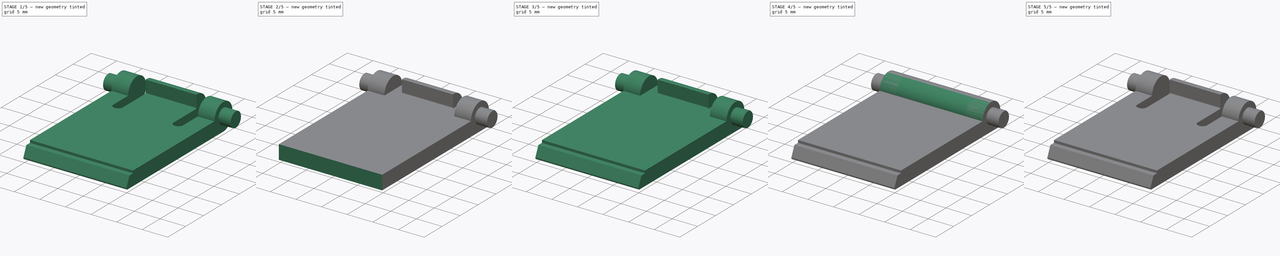
[diagram: build sequence overview — one tinted view per stage of 5, left to right]
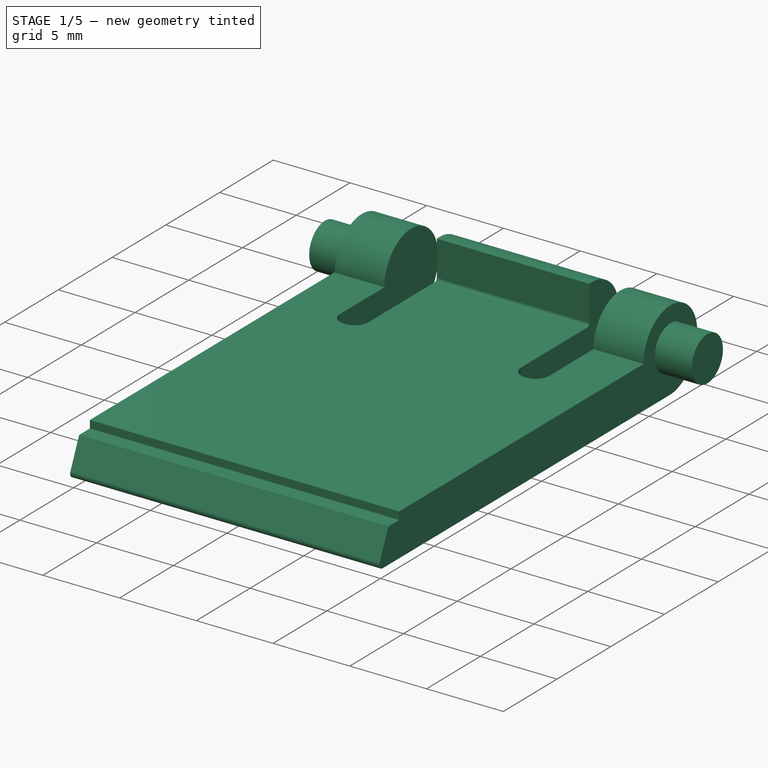
[diagram: stage 1 of 5 — iso view after this stage's code; geometry added in this stage tinted green]
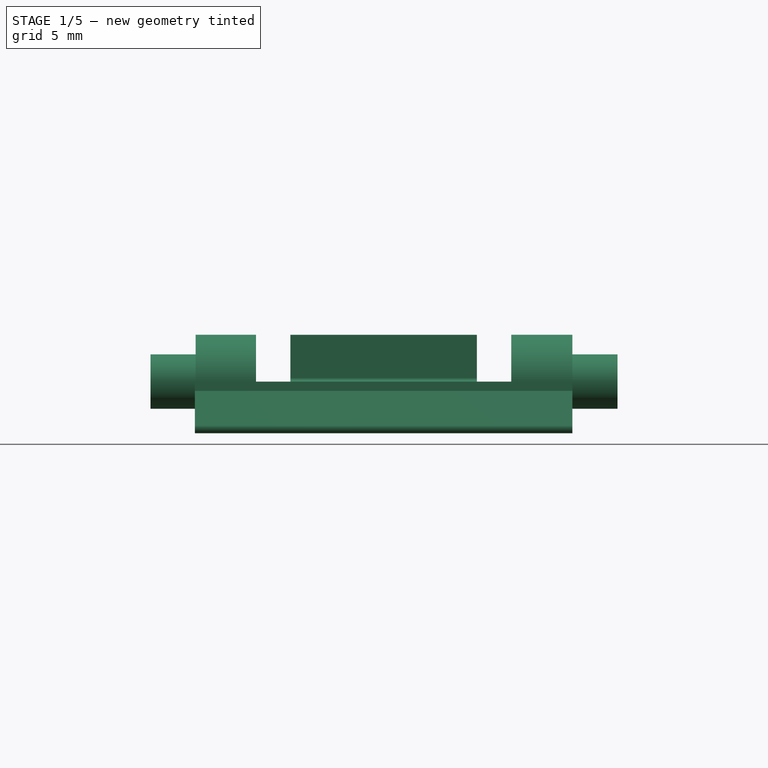
[diagram: stage 1 of 5 — front view after this stage's code; geometry added in this stage tinted green]
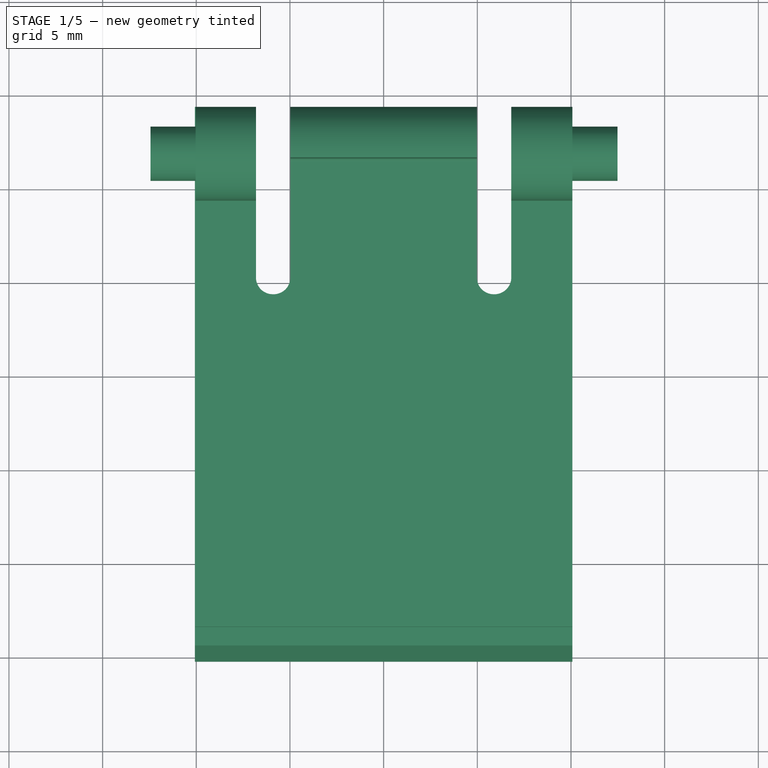
[diagram: stage 1 of 5 — top view after this stage's code; geometry added in this stage tinted green]
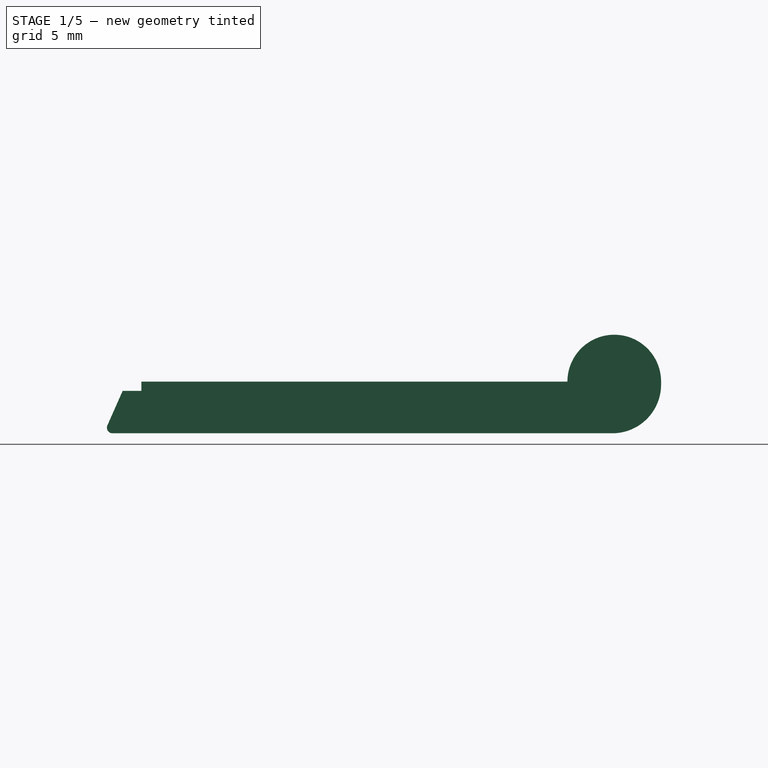
[diagram: stage 1 of 5 — right view after this stage's code; geometry added in this stage tinted green]
FCSTD DOCUMENT  (FreeCAD 0.14R3702 (Git))
Label: Patilla Teclado Felipe
License: CC-BY 3.0
LicenseURL: http://creativecommons.org/licenses/by/3.0/
objects: Sketcher::SketchObject×10, PartDesign::Pad×6, PartDesign::Fillet×5, PartDesign::Pocket×4, Part::Feature×1
note: 36 computed .brp shape members not serialized (recipe doc carries the construction recipe); baked Part::Feature solids carry a one-line shape summary decoded from their .brp

FEATURE [Part::Feature] Fillet001001  label="Fillet002"
  shape: bbox 24.93 x 29.58 x 5.26 mm, 28 faces (baked)
FEATURE [PartDesign::Fillet] Fillet001002
  Base = -> Fillet001001 [Edge18,Edge15,Edge24]
  Radius = 2.6
FEATURE [PartDesign::Fillet] Fillet001003
  Base = -> Fillet001002 [Edge29,Edge6]
  Radius = 0.9
FEATURE [PartDesign::Fillet] Fillet001004
  Base = -> Fillet001003 [Edge73,Edge76]
  Radius = 0.9
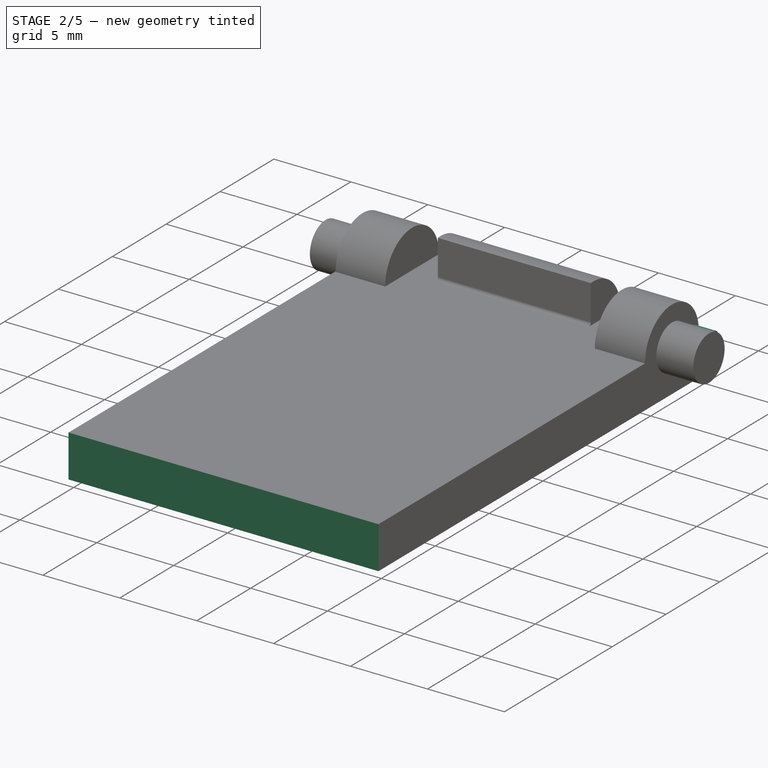
[diagram: stage 2 of 5 — iso view after this stage's code; geometry added in this stage tinted green]
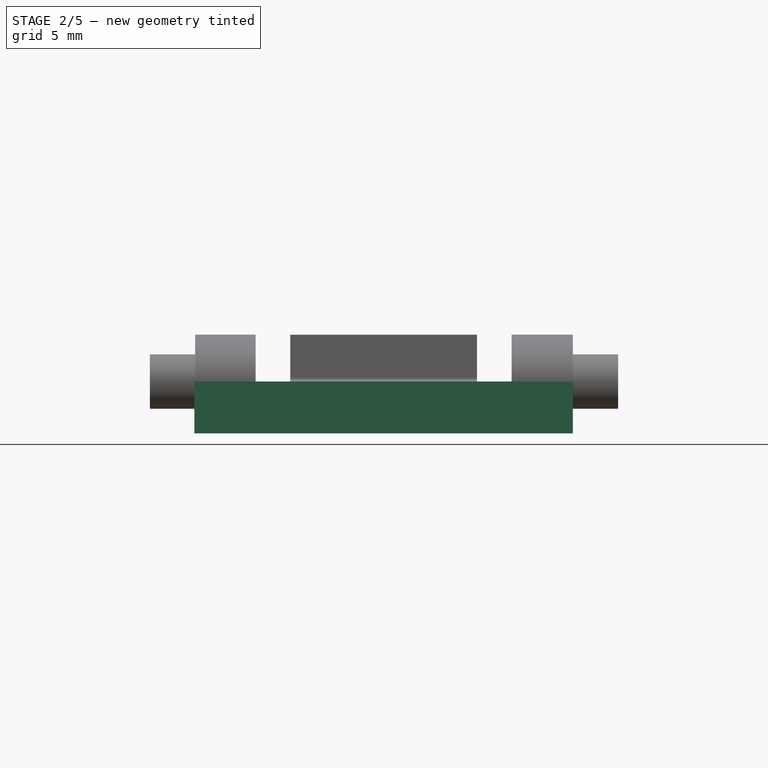
[diagram: stage 2 of 5 — front view after this stage's code; geometry added in this stage tinted green]
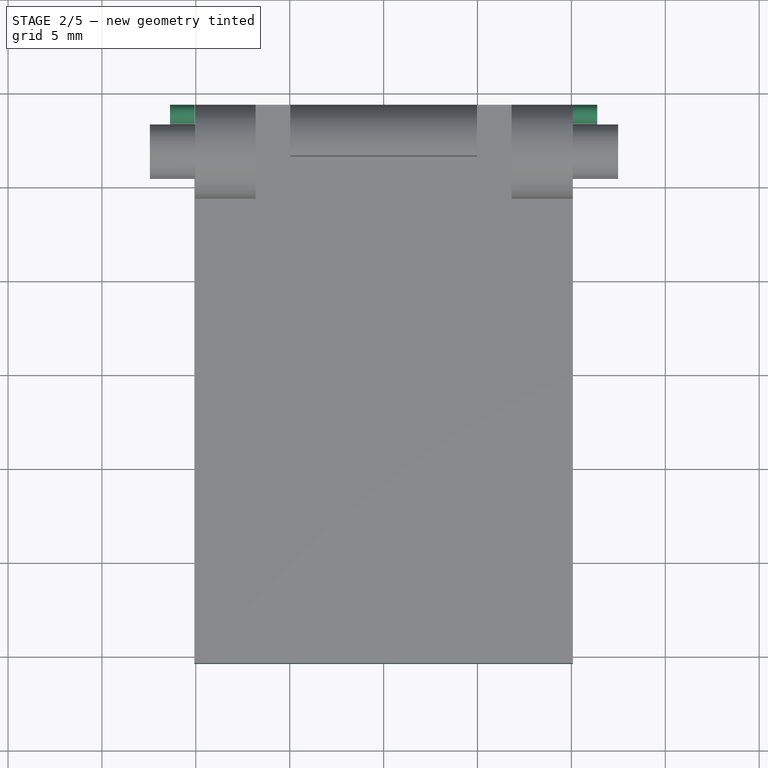
[diagram: stage 2 of 5 — top view after this stage's code; geometry added in this stage tinted green]
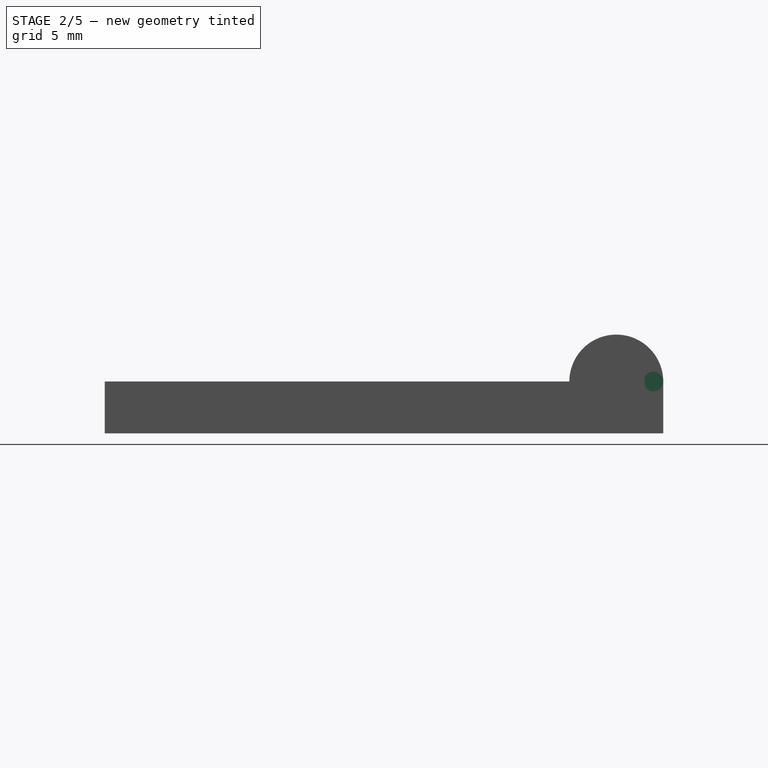
[diagram: stage 2 of 5 — right view after this stage's code; geometry added in this stage tinted green]
FEATURE [Sketcher::SketchObject] Sketch
  sketch-geometry (4):
    g0: LineSegment StartX=-10.075 StartY=19.3668 StartZ=0 EndX=10.075 EndY=19.3668 EndZ=0
    g1: LineSegment StartX=10.075 StartY=19.3668 StartZ=0 EndX=10.075 EndY=-10.3732 EndZ=0
    g2: LineSegment StartX=10.075 StartY=-10.3732 StartZ=0 EndX=-10.075 EndY=-10.3732 EndZ=0
    g3: LineSegment StartX=-10.075 StartY=-10.3732 StartZ=0 EndX=-10.075 EndY=19.3668 EndZ=0
  constraints (11):
    c: Coincident(g0,g1)
    c: Coincident(g1,g2)
    c: Coincident(g2,g3)
    c: Coincident(g3,g0)
    c: Horizontal(g0)
    c: Horizontal(g2)
    c: Vertical(g1)
    c: Vertical(g3)
    c: Symmetric(g1,g2,g-2)
    c: DistanceX(g2) = -20.15
    c: DistanceY(g1) = -29.74
FEATURE [PartDesign::Pad] Pad
  Length = 2.76
  Length2 = 100
  Midplane = true
  Sketch = -> Sketch
  Type = 0
FEATURE [Sketcher::SketchObject] Sketch008
  ExternalGeometry = -> [Fillet001004]
  Placement = pos=(10.075,0,0) rot=(0.57735,0.57735,0.57735;2.0944rad)
  Support = -> Fillet001004 [Face13]
  sketch-geometry (2):
    g0: LineSegment [constr] StartX=-8.37321 StartY=1.38 StartZ=0 EndX=21.8346 EndY=1.38 EndZ=0
    g1: Circle CenterX=18.8418 CenterY=1.38 CenterZ=0 NormalX=0 NormalY=0 NormalZ=1 Radius=0.525
  constraints (5):
    c: Coincident(g0,g-3)
    c: Horizontal(g0)
    c: PointOnObject(g1,g0)
    c: Tangent(g1,g-4)
    c: Tangent(g1,g-5)
FEATURE [PartDesign::Pad] Pad004
  Length = 1.3
  Length2 = 100
  Sketch = -> Sketch008
  Type = 0
FEATURE [Sketcher::SketchObject] Sketch010
  ExternalGeometry = -> [Pad004]
  Placement = pos=(-10.075,0,0) rot=(0.57735,-0.57735,-0.57735;2.0944rad)
  Support = -> Pad004 [Face17]
  sketch-geometry (2):
    g0: LineSegment [constr] StartX=-12.9401 StartY=1.38 StartZ=0 EndX=-20.8561 EndY=1.38 EndZ=0
    g1: Circle CenterX=-18.8415 CenterY=1.38 CenterZ=0 NormalX=0 NormalY=0 NormalZ=1 Radius=0.525
  constraints (4):
    c: PointOnObject(g0,g-3)
    c: Horizontal(g0)
    c: PointOnObject(g1,g0)
    c: Radius(g1) = 0.525
FEATURE [PartDesign::Pad] Pad005
  Length = 1.3
  Length2 = 100
  Sketch = -> Sketch010
  Type = 0
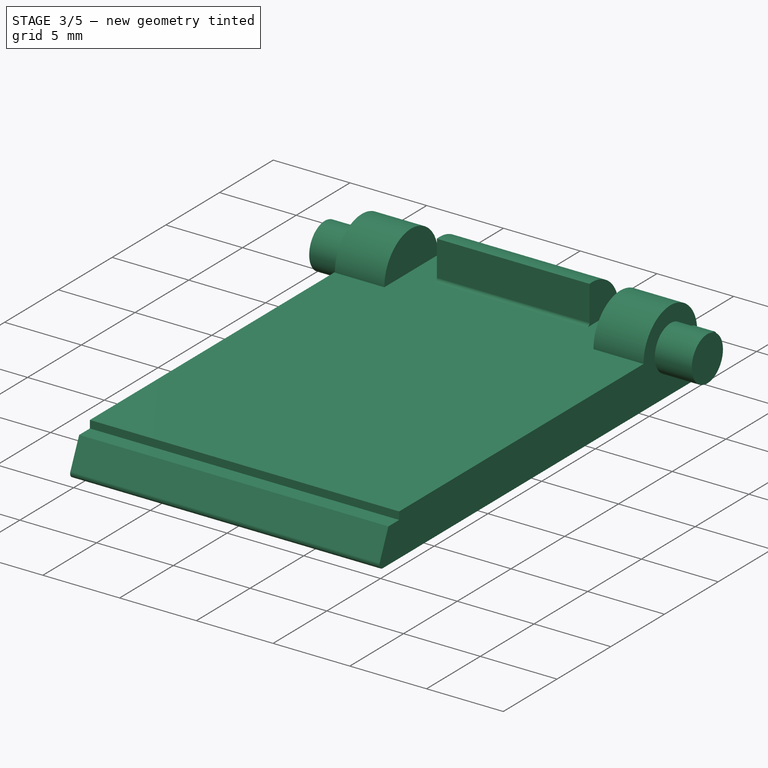
[diagram: stage 3 of 5 — iso view after this stage's code; geometry added in this stage tinted green]
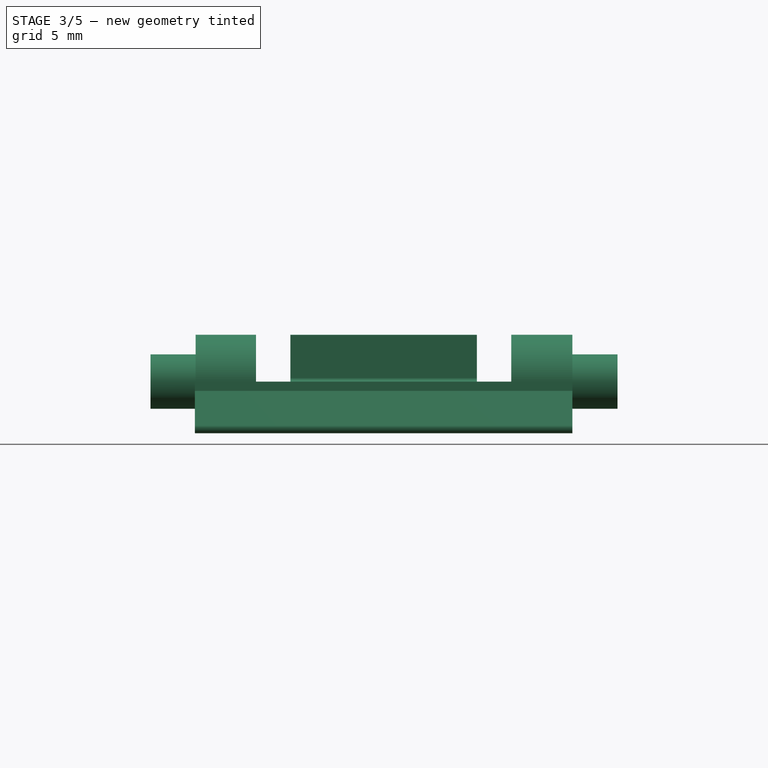
[diagram: stage 3 of 5 — front view after this stage's code; geometry added in this stage tinted green]
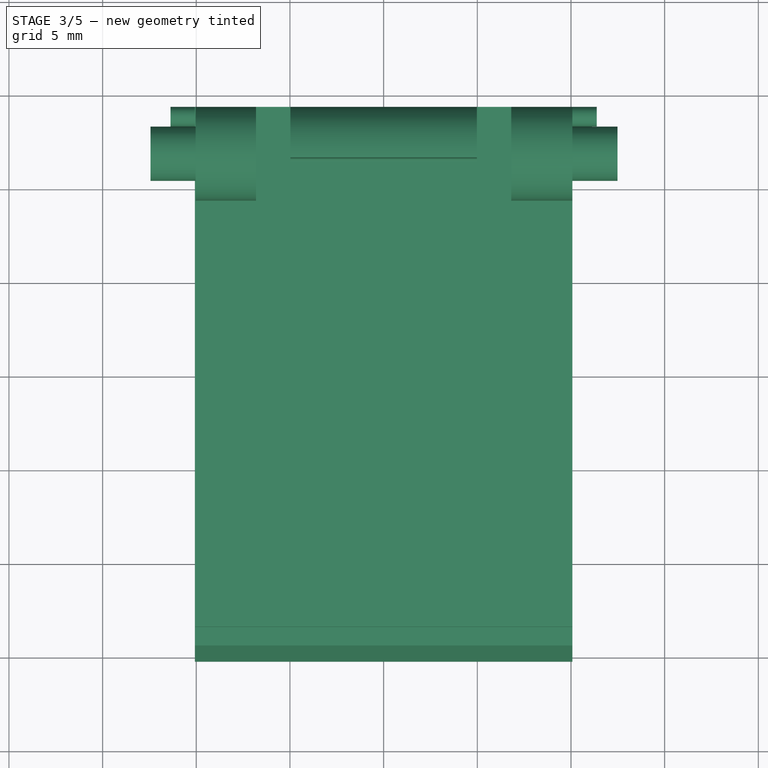
[diagram: stage 3 of 5 — top view after this stage's code; geometry added in this stage tinted green]
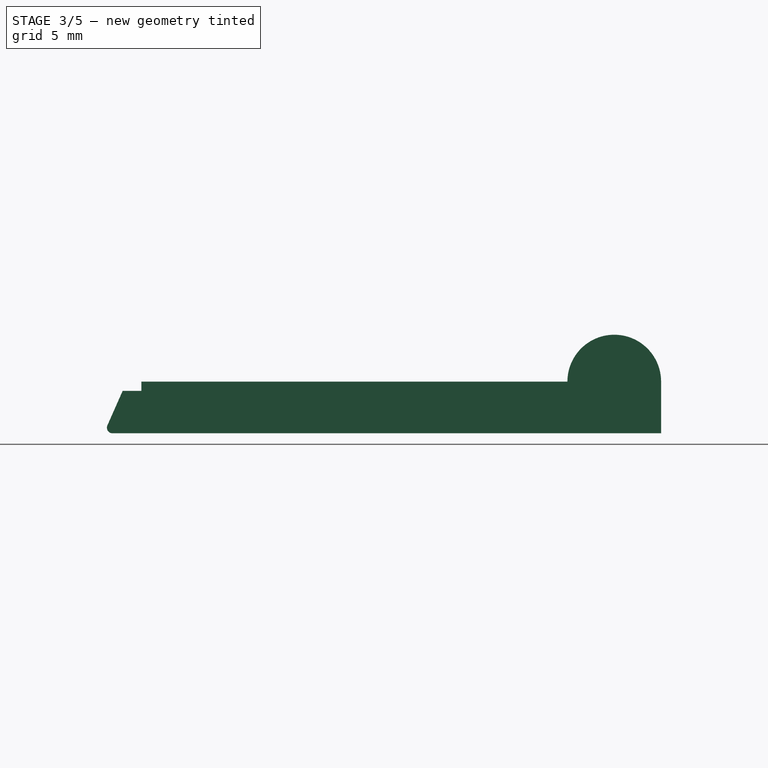
[diagram: stage 3 of 5 — right view after this stage's code; geometry added in this stage tinted green]
FEATURE [Sketcher::SketchObject] Sketch001
  ExternalGeometry = -> [Pad]
  Placement = pos=(-10.075,0,0) rot=(0.57735,-0.57735,-0.57735;2.0944rad)
  Support = -> Pad [Face4]
  sketch-geometry (4):
    g0: LineSegment StartX=8.37321 StartY=1.38 StartZ=0 EndX=10.3732 EndY=1.38 EndZ=0
    g1: LineSegment StartX=10.3732 StartY=1.38 StartZ=0 EndX=10.3732 EndY=0.88 EndZ=0
    g2: LineSegment StartX=10.3732 StartY=0.88 StartZ=0 EndX=8.37321 EndY=0.88 EndZ=0
    g3: LineSegment StartX=8.37321 StartY=0.88 StartZ=0 EndX=8.37321 EndY=1.38 EndZ=0
  constraints (11):
    c: Coincident(g0,g1)
    c: Coincident(g1,g2)
    c: Coincident(g2,g3)
    c: Coincident(g3,g0)
    c: Horizontal(g0)
    c: Horizontal(g2)
    c: Vertical(g1)
    c: Vertical(g3)
    c: Coincident(g0,g-3)
    c: DistanceX(g2) = -2
    c: DistanceY(g3) = 0.5
FEATURE [PartDesign::Pocket] Pocket
  Length = 5
  Sketch = -> Sketch001
  Type = 1
FEATURE [Sketcher::SketchObject] Sketch002
  ExternalGeometry = -> [Pocket]
  Placement = pos=(-10.075,0,0) rot=(0.57735,-0.57735,-0.57735;2.0944rad)
  Support = -> Pocket [Face2]
  sketch-geometry (3):
    g0: LineSegment StartX=10.3732 StartY=-1.38 StartZ=0 EndX=9.37321 EndY=0.88 EndZ=0
    g1: LineSegment StartX=9.37321 StartY=0.88 StartZ=0 EndX=10.3732 EndY=0.88 EndZ=0
    g2: LineSegment StartX=10.3732 StartY=0.88 StartZ=0 EndX=10.3732 EndY=-1.38 EndZ=0
  constraints (7):
    c: Coincident(g0,g1)
    c: Coincident(g1,g2)
    c: Coincident(g2,g0)
    c: Coincident(g0,g-4)
    c: Horizontal(g1)
    c: Coincident(g1,g-3)
    c: DistanceX(g0,g1) = 1
FEATURE [PartDesign::Pocket] Pocket001
  Length = 5
  Sketch = -> Sketch002
  Type = 1
FEATURE [PartDesign::Fillet] Fillet
  Base = -> Pocket001 [Edge15]
  Radius = 0.3
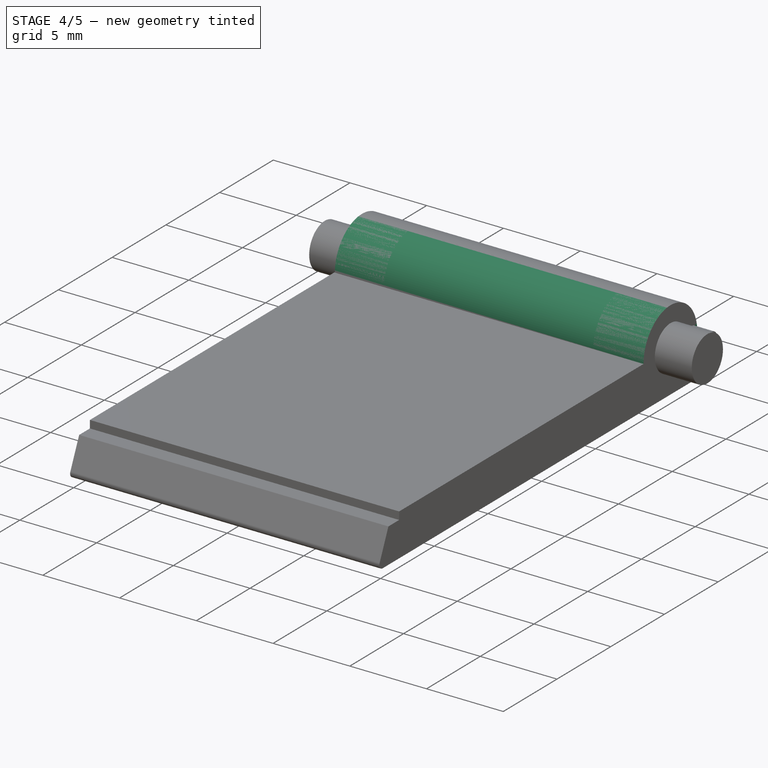
[diagram: stage 4 of 5 — iso view after this stage's code; geometry added in this stage tinted green]
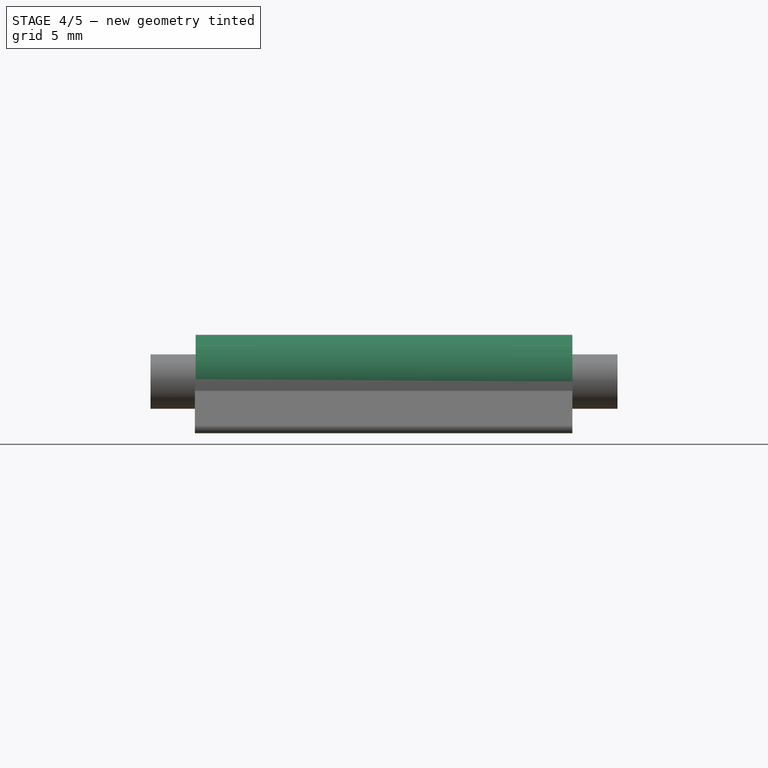
[diagram: stage 4 of 5 — front view after this stage's code; geometry added in this stage tinted green]
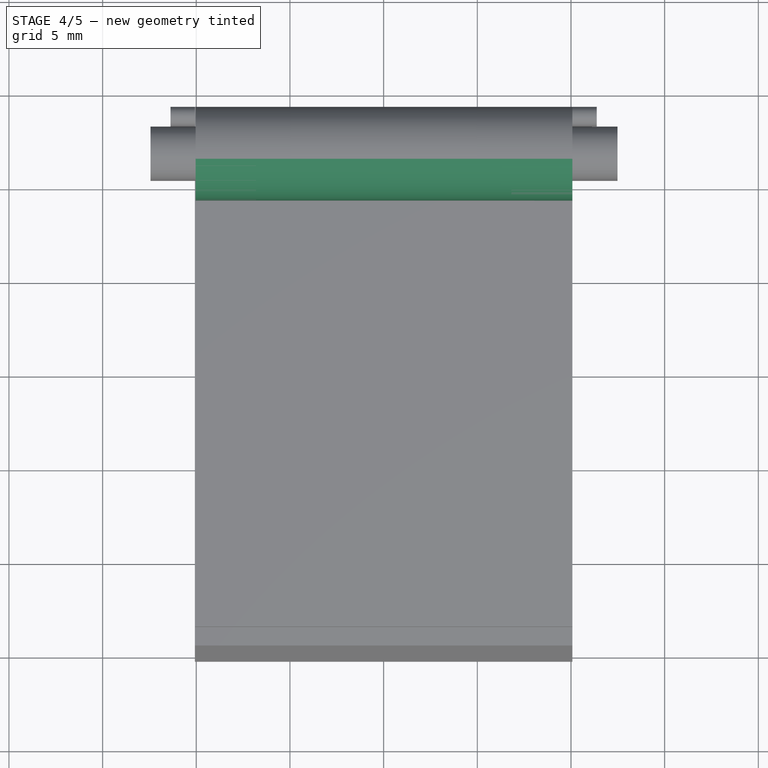
[diagram: stage 4 of 5 — top view after this stage's code; geometry added in this stage tinted green]
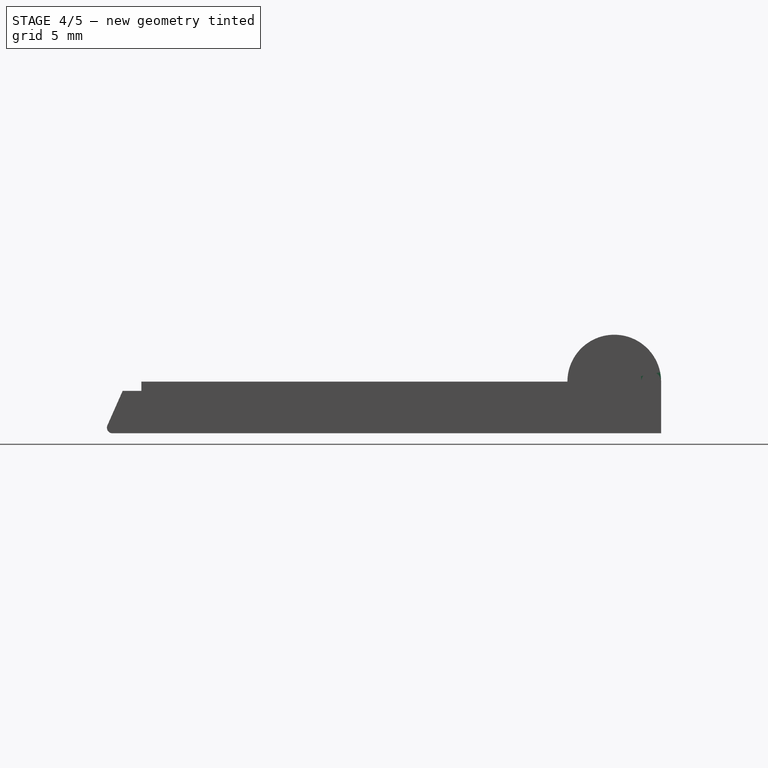
[diagram: stage 4 of 5 — right view after this stage's code; geometry added in this stage tinted green]
FEATURE [Sketcher::SketchObject] Sketch003
  ExternalGeometry = -> [Fillet]
  Placement = pos=(10.075,0,0) rot=(0.57735,0.57735,0.57735;2.0944rad)
  Support = -> Fillet [Face9]
  sketch-geometry (1):
    g0: Circle CenterX=16.8668 CenterY=1.38 CenterZ=0 NormalX=0 NormalY=0 NormalZ=1 Radius=2.5
  constraints (3):
    c: PointOnObject(g0,g-3)
    c: Radius(g0) = 2.5
    c: PointOnObject(g-3,g0)
FEATURE [PartDesign::Pad] Pad001
  Length = 20.11
  Length2 = 100
  Reversed = true
  Sketch = -> Sketch003
  Type = 0
FEATURE [Sketcher::SketchObject] Sketch004
  ExternalGeometry = -> [Pad001]
  Placement = pos=(10.075,0,0) rot=(0.57735,0.57735,0.57735;2.0944rad)
  Support = -> Pad001 [Face9]
  sketch-geometry (1):
    g0: Circle CenterX=16.8668 CenterY=1.38 CenterZ=0 NormalX=0 NormalY=0 NormalZ=1 Radius=1.45
  constraints (3):
    c: PointOnObject(g0,g-3)
    c: Coincident(g-4,g0)
    c: Radius(g0) = 1.45
FEATURE [PartDesign::Pad] Pad002
  Length = 2.41
  Length2 = 100
  Sketch = -> Sketch004
  Type = 0
FEATURE [Sketcher::SketchObject] Sketch005
  ExternalGeometry = -> [Pad002]
  Placement = pos=(-10.035,0,0) rot=(0.57735,-0.57735,-0.57735;2.0944rad)
  Support = -> Pad002 [Face11]
  sketch-geometry (1):
    g0: Circle CenterX=-16.8668 CenterY=1.38 CenterZ=0 NormalX=0 NormalY=0 NormalZ=1 Radius=1.45
  constraints (2):
    c: Coincident(g0,g-3)
    c: Radius(g0) = 1.45
FEATURE [PartDesign::Pad] Pad003
  Length = 2.41
  Length2 = 100
  Sketch = -> Sketch005
  Type = 0
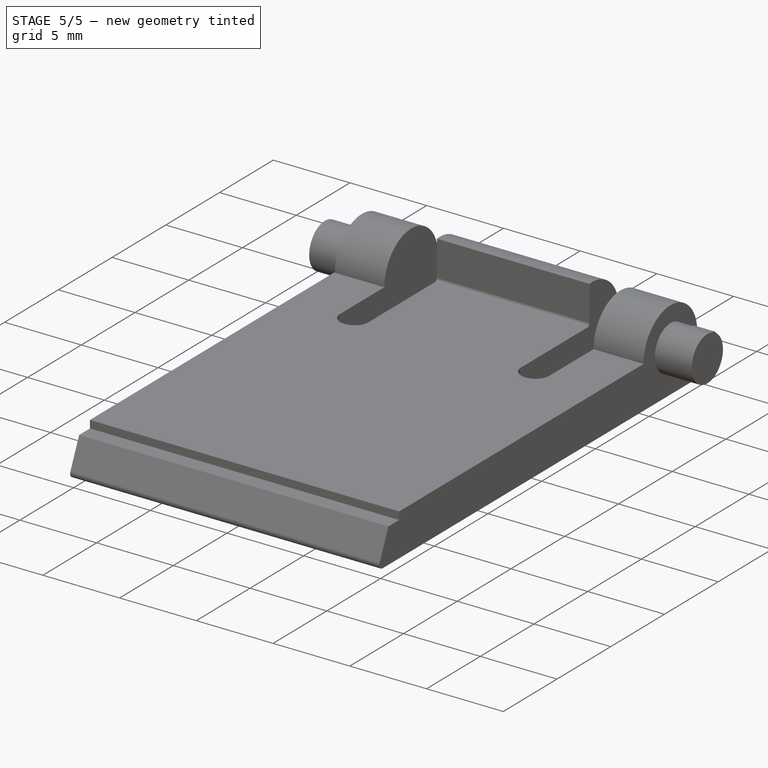
[diagram: stage 5 of 5 — iso view after this stage's code; geometry added in this stage tinted green]
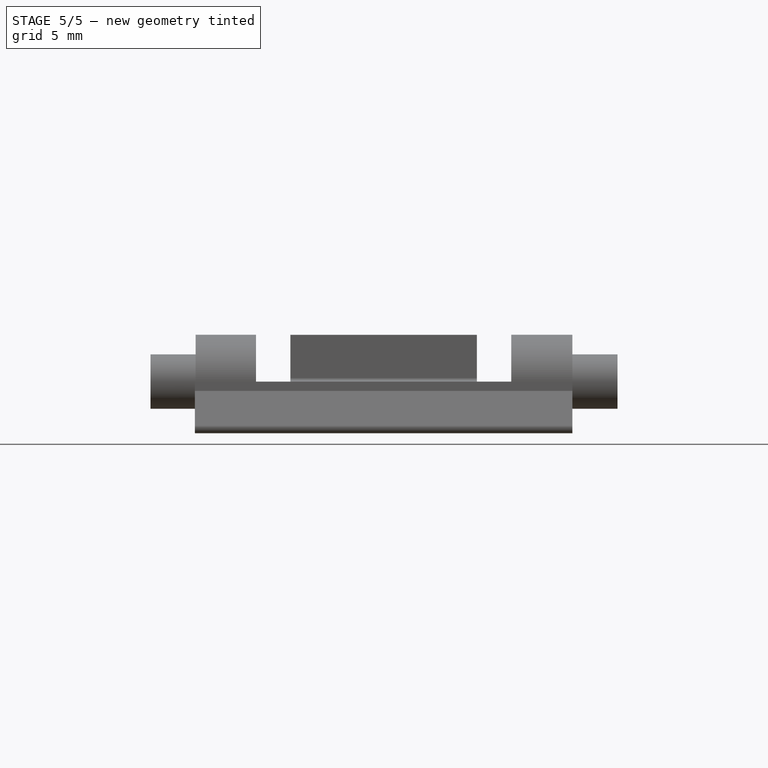
[diagram: stage 5 of 5 — front view after this stage's code; geometry added in this stage tinted green]
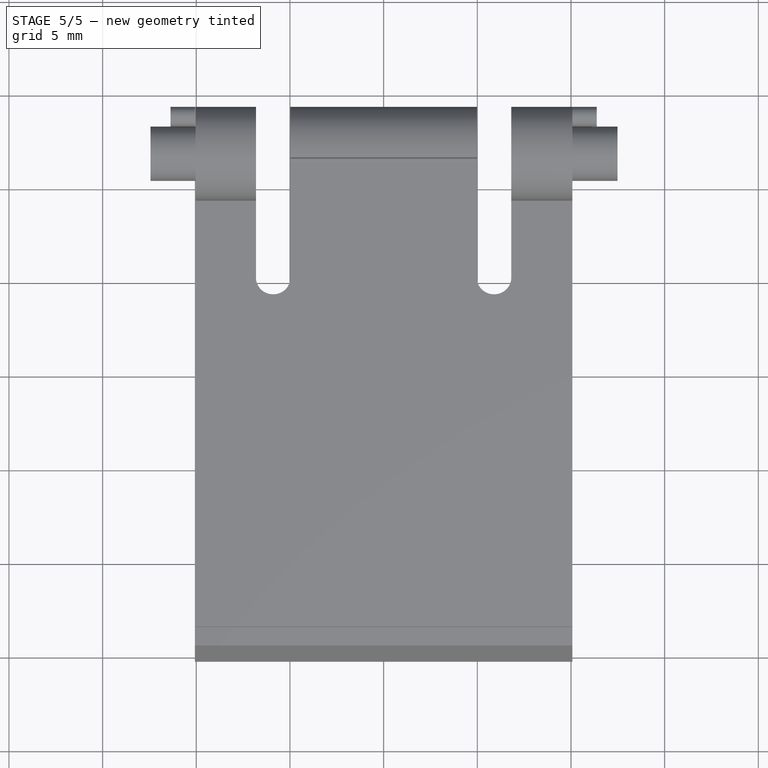
[diagram: stage 5 of 5 — top view after this stage's code; geometry added in this stage tinted green]
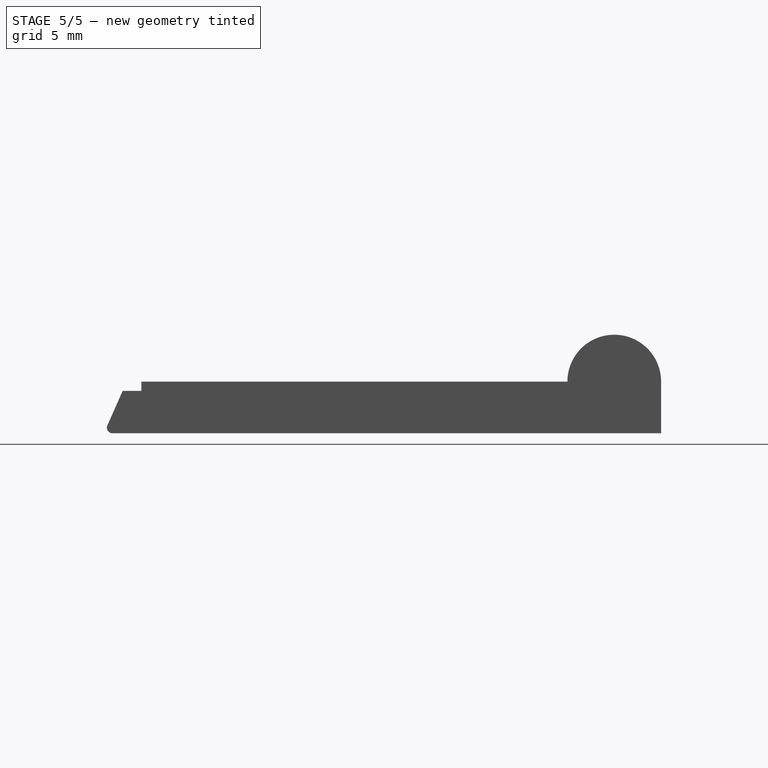
[diagram: stage 5 of 5 — right view after this stage's code; geometry added in this stage tinted green]
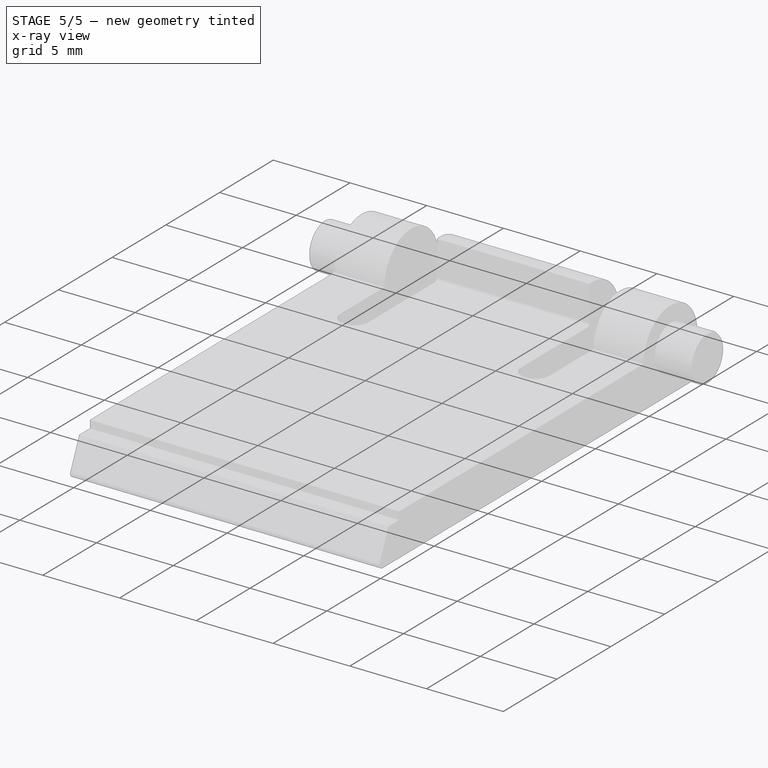
[diagram: stage 5 of 5 — x-ray composite at the iso view; earlier geometry ghosted, this stage's added geometry solid]
FEATURE [Sketcher::SketchObject] Sketch006
  ExternalGeometry = -> [Pad003]
  Placement = pos=(0,19.3668,0) rot=(0,0.707107,0.707107;3.14159rad)
  Support = -> Pad003 [Face4]
  sketch-geometry (8):
    g0: LineSegment StartX=4.975 StartY=5.27364 StartZ=0 EndX=6.815 EndY=5.27364 EndZ=0
    g1: LineSegment StartX=6.815 StartY=5.27364 StartZ=0 EndX=6.815 EndY=-3.34224 EndZ=0
    g2: LineSegment StartX=6.815 StartY=-3.34224 StartZ=0 EndX=4.975 EndY=-3.34224 EndZ=0
    g3: LineSegment StartX=4.975 StartY=-3.34224 StartZ=0 EndX=4.975 EndY=5.27364 EndZ=0
    g4: LineSegment StartX=-6.815 StartY=5.43759 StartZ=0 EndX=-4.975 EndY=5.43759 EndZ=0
    g5: LineSegment StartX=-4.975 StartY=5.43759 StartZ=0 EndX=-4.975 EndY=-3.34224 EndZ=0
    g6: LineSegment StartX=-4.975 StartY=-3.34224 StartZ=0 EndX=-6.815 EndY=-3.34224 EndZ=0
    g7: LineSegment StartX=-6.815 StartY=-3.34224 StartZ=0 EndX=-6.815 EndY=5.43759 EndZ=0
  constraints (20):
    c: Coincident(g0,g1)
    c: Coincident(g1,g2)
    c: Coincident(g2,g3)
    c: Coincident(g3,g0)
    c: Horizontal(g0)
    c: Horizontal(g2)
    c: Vertical(g1)
    c: Vertical(g3)
    c: Coincident(g4,g5)
    c: Coincident(g5,g6)
    c: Coincident(g6,g7)
    c: Coincident(g7,g4)
    c: Horizontal(g4)
    c: Horizontal(g6)
    c: Vertical(g5)
    c: Vertical(g7)
    c: DistanceX(g2,g5) = -9.95
    c: Symmetric(g5,g2,g-2)
    c: DistanceX(g1,g-3) = 3.26
    c: DistanceX(g6,g-3) = -3.26
FEATURE [PartDesign::Pocket] Pocket002
  Length = 10
  Sketch = -> Sketch006
  Type = 0
FEATURE [Sketcher::SketchObject] Sketch007
  ExternalGeometry = -> [Pocket002]
  Placement = pos=(0,-8.37321,0) rot=(1,0,0;1.5708rad)
  Support = -> Pocket002 [Face17]
  sketch-geometry (4):
    g0: LineSegment StartX=-5.35561 StartY=5.49224 StartZ=0 EndX=5.9021 EndY=5.49224 EndZ=0
    g1: LineSegment StartX=5.9021 StartY=5.49224 StartZ=0 EndX=5.9021 EndY=1.38 EndZ=0
    g2: LineSegment StartX=5.9021 StartY=1.38 StartZ=0 EndX=-5.35561 EndY=1.38 EndZ=0
    g3: LineSegment StartX=-5.35561 StartY=1.38 StartZ=0 EndX=-5.35561 EndY=5.49224 EndZ=0
  constraints (9):
    c: Coincident(g0,g1)
    c: Coincident(g1,g2)
    c: Coincident(g2,g3)
    c: Coincident(g3,g0)
    c: Horizontal(g0)
    c: Horizontal(g2)
    c: Vertical(g1)
    c: Vertical(g3)
    c: PointOnObject(g1,g-3)
FEATURE [PartDesign::Pocket] Pocket003
  Length = 25
  Sketch = -> Sketch007
  Type = 0
FEATURE [PartDesign::Fillet] Fillet001
  Base = -> Pocket003 [Edge75]
  Radius = 0.2
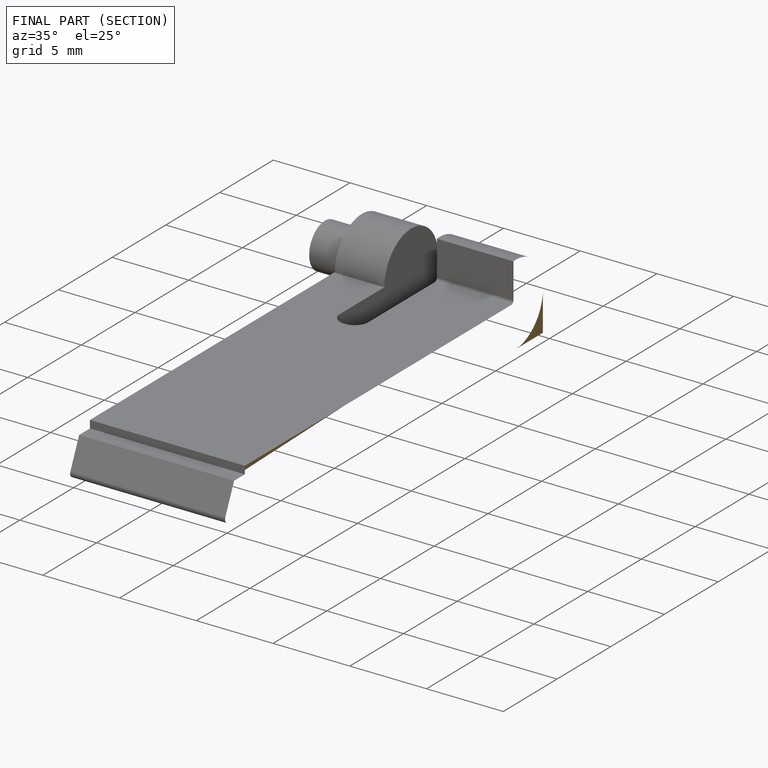
[diagram: finished part — half-section view (interior)]
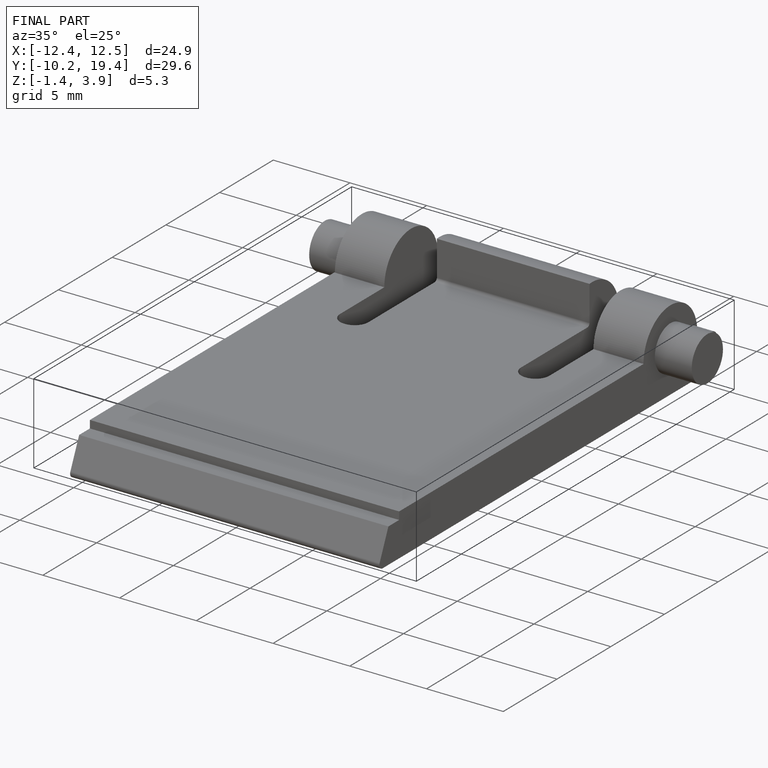
[diagram: finished part — iso view with bounding-box wireframe]
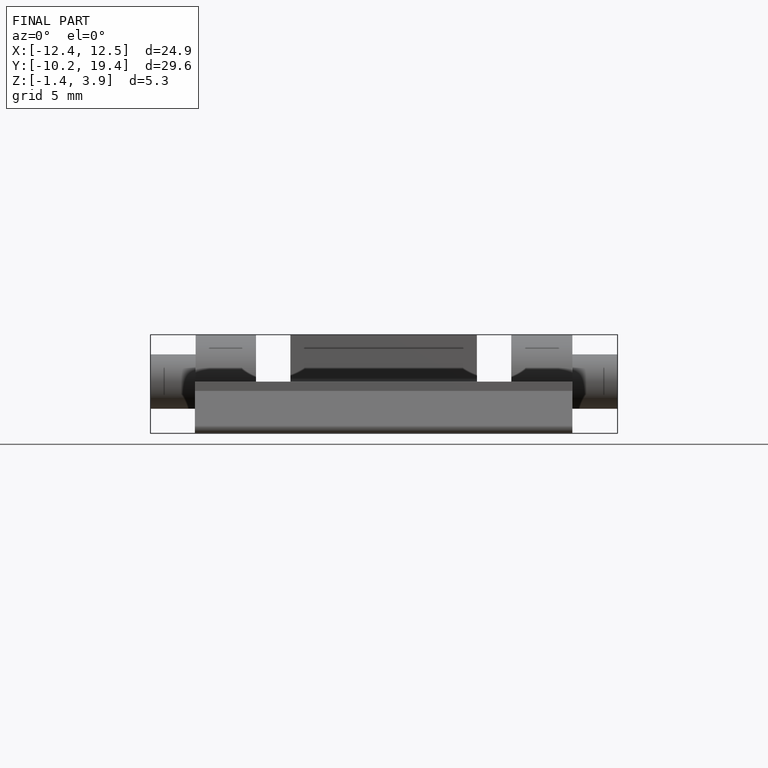
[diagram: finished part — front view with bounding-box wireframe]
